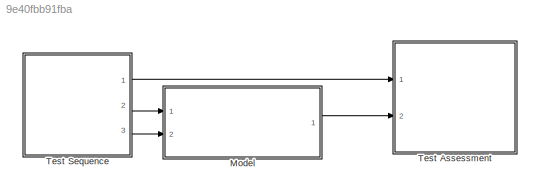
MODEL slx_9e40fbb91fba
KIND model
CONFIG AbsTol = auto
CONFIG EnableMultiTasking = off
CONFIG FixedStep = auto
CONFIG MaxStep = auto
CONFIG MinStep = auto
CONFIG RelTol = 1e-3
CONFIG SampleTimeConstraint = Unconstrained
CONFIG Solver = VariableStepAuto
CONFIG SolverName = VariableStepAuto
CONFIG StartTime = 0.0
CONFIG StopTime = 10.0
BLOCK [ModelReference] Model
  ModelNameDialog = adder
  ModelReferenceVersion = 1.2
  Ports = [2, 1]
  Variant = off
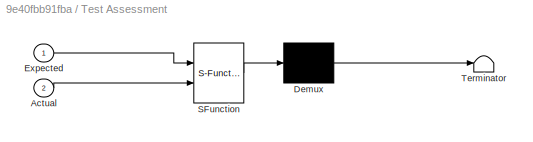
BLOCK [SubSystem] Test Assessment
  ErrorFcn = Stateflow.Translate.translate
  PermitHierarchicalResolution = ExplicitOnly
  Ports = [2]
  RequestExecContextInheritance = off
  SFBlockType = State Transition Table
  TreatAsAtomicUnit = on
  Variant = off
BLOCK [Demux] Test Assessment/ Demux 
  Outputs = 1
  Ports = [1, 1]
BLOCK [S-Function] Test Assessment/ SFunction 
  EnableBusSupport = on
  FunctionName = sf_sfun
  PortCounts = [2 1]
  Ports = [2, 1]
  SFcnIsStateOwnerBlock = off
  SFunctionDeploymentMode = off
  Tag = Stateflow S-Function tester 1
BLOCK [Terminator] Test Assessment/ Terminator 
BLOCK [Inport] Test Assessment/Actual
  IconDisplay = Port number
  Port = 2
BLOCK [Inport] Test Assessment/Expected
  IconDisplay = Port number
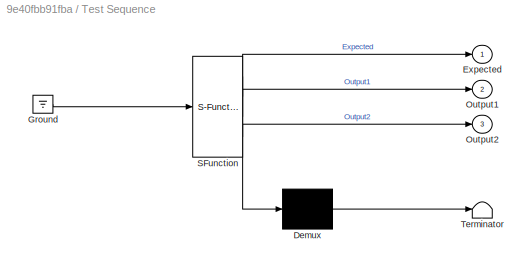
BLOCK [SubSystem] Test Sequence
  ErrorFcn = Stateflow.Translate.translate
  PermitHierarchicalResolution = ExplicitOnly
  Ports = [0, 3]
  RequestExecContextInheritance = off
  SFBlockType = State Transition Table
  TreatAsAtomicUnit = on
  Variant = off
BLOCK [Demux] Test Sequence/ Demux 
  Outputs = 1
  Ports = [1, 1]
BLOCK [Ground] Test Sequence/ Ground 
BLOCK [S-Function] Test Sequence/ SFunction 
  EnableBusSupport = on
  FunctionName = sf_sfun
  PortCounts = [1 4]
  Ports = [1, 4]
  SFcnIsStateOwnerBlock = off
  SFunctionDeploymentMode = off
  Tag = Stateflow S-Function tester 4
BLOCK [Terminator] Test Sequence/ Terminator 
BLOCK [Outport] Test Sequence/Expected
  IconDisplay = Port number
BLOCK [Outport] Test Sequence/Output1
  IconDisplay = Port number
  Port = 2
BLOCK [Outport] Test Sequence/Output2
  IconDisplay = Port number
  Port = 3
LINE Model:1 -> Test Assessment:2
LINE Test Sequence:1 -> Test Assessment:1
LINE Test Sequence:2 -> Model:1
LINE Test Sequence:3 -> Model:2
CHART Test Assessment states=1 transitions=1
  STATE_LABEL 'step_1\nverify(Expected == Actual)'
CHART Test Sequence states=2 transitions=2
  STATE_LABEL 'step_1\nOutput1 = 1;\nOutput2 = 1;\nExpected = 2;'
  STATE_LABEL 'step_2\nOutput1 = 2;\nOutput2 = 3;\nExpected = 5;'
